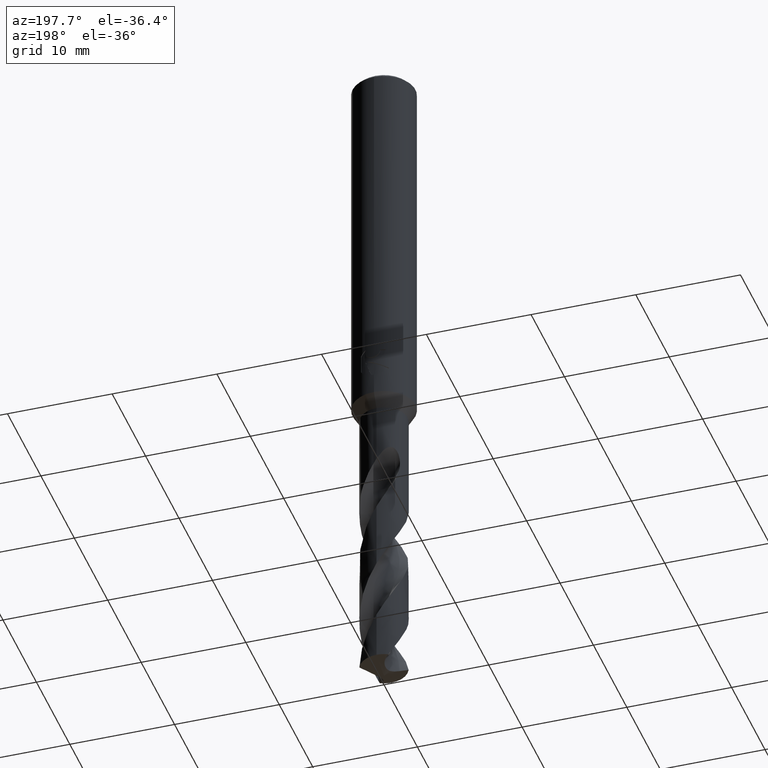
[diagram: clean part render]
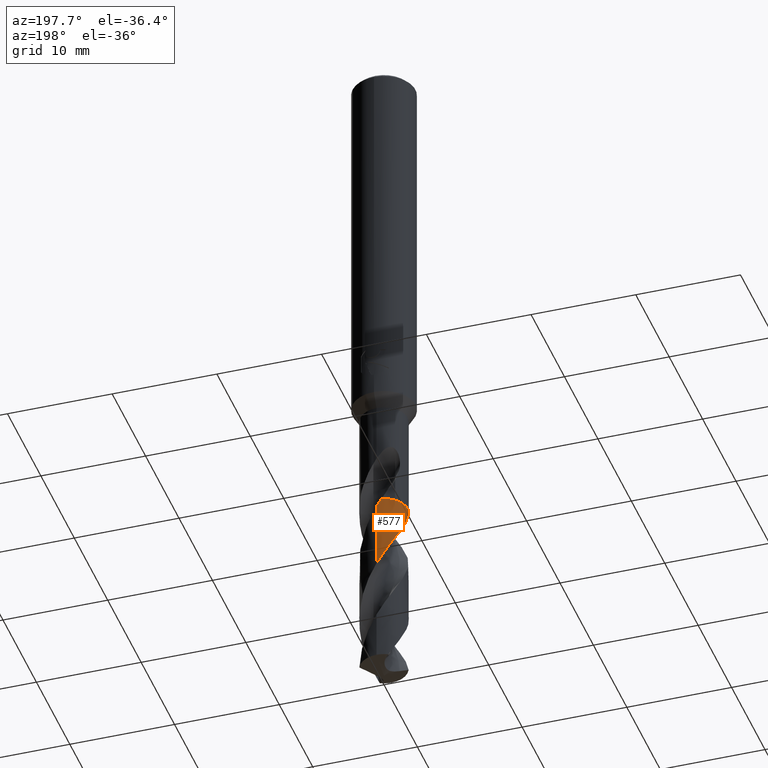
[diagram: same view with one face highlighted and labeled with its STEP entity id]
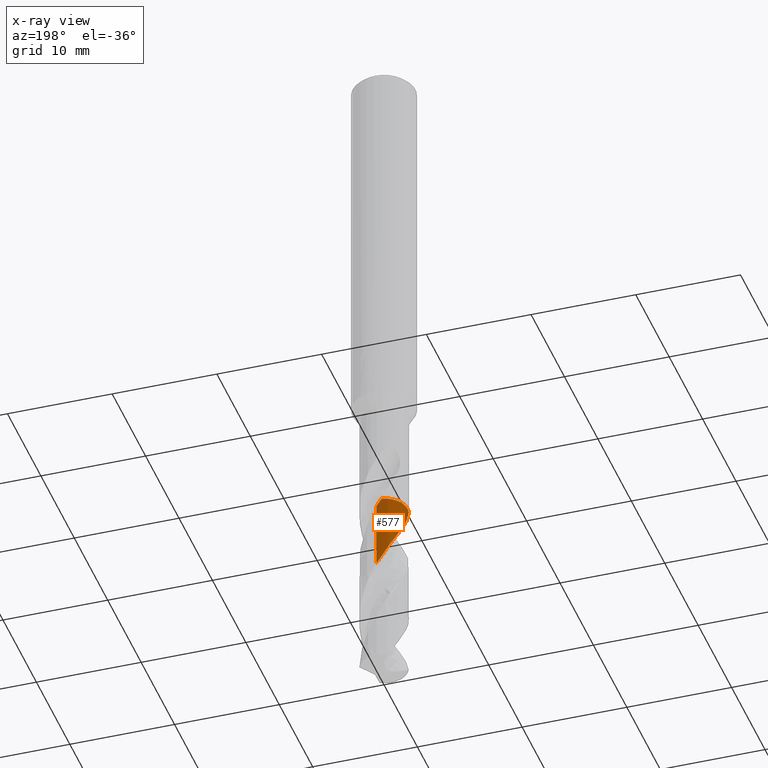
[diagram: x-ray of the same camera — body ghosted, the highlighted face saturated]
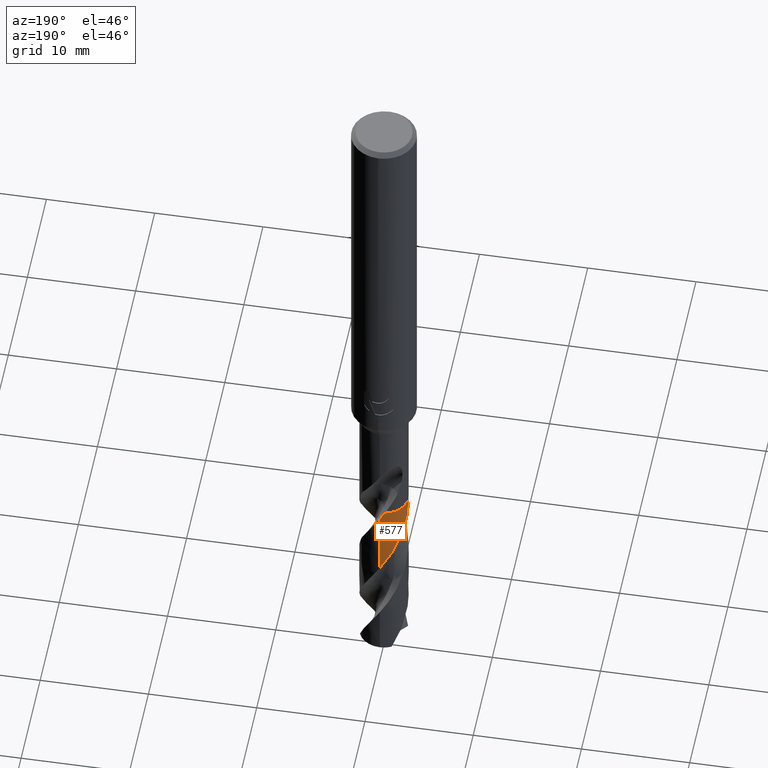
[diagram: same view with one face highlighted and labeled with its STEP entity id]
A machine part, auxiliary view. The second image highlights one B-rep face of the part: STEP entity #577.
The next image is the same camera in x-ray: the body ghosted, the highlighted face saturated — about 0% of this face is hidden behind the body in this view.
A second angle (auxiliary view) of the same face is appended — the face is thin or edge-on in the first view.
In plain terms, the highlighted conical surface has half-angle 0 deg.
Its self-contained STEP definition (entity closure, byte-faithful):
#343=VERTEX_POINT('',#872);
#381=VERTEX_POINT('',#913);
#409=VERTEX_POINT('',#942);
#457=VERTEX_POINT('',#996);
#521=EDGE_CURVE('',#343,#675,#1067,.T.);
#577=ADVANCED_FACE('',(#1128),#1129,.T.);
#655=VERTEX_POINT('',#1217);
#663=EDGE_CURVE('',#409,#457,#1226,.T.);
#675=VERTEX_POINT('',#1239);
#679=EDGE_CURVE('',#655,#343,#1243,.T.);
#731=EDGE_CURVE('',#457,#381,#1298,.T.);
#749=EDGE_CURVE('',#381,#655,#1317,.T.);
#775=EDGE_CURVE('',#675,#409,#1345,.T.);
#872=CARTESIAN_POINT('',(5.07234045210269E-013,2.24990455954114,-48.4016159823466));
#913=CARTESIAN_POINT('',(-0.460633268455283,2.20224135870531,-47.6));
#942=CARTESIAN_POINT('',(-2.15646575794409,-0.641642876413779,-47.605));
#996=CARTESIAN_POINT('',(-2.15563534645972,-0.644427081284996,-47.6));
#1067=LINE('',#3520,#3521);
#1128=FACE_OUTER_BOUND('',#4341,.T.);
#1129=CONICAL_SURFACE('',#4342,2.24995,5.68793692403708E-006);
#1217=CARTESIAN_POINT('',(-0.457794679411212,2.20283321418354,-47.605));
#1226=B_SPLINE_CURVE_WITH_KNOTS('',3,(#5672,#5673,#5674,#5675),.UNSPECIFIED.,.F.,.F.,(4,4),(0.0,0.00881344987940825),.UNSPECIFIED.);
#1239=CARTESIAN_POINT('',(-2.80241454400412E-015,2.24994116683028,-54.8375680020494));
#1243=B_SPLINE_CURVE_WITH_KNOTS('',3,(#5723,#5724,#5725,#5726,#5727,#5728,#5729,#5730,#5731,#5732,#5733,#5734,#5735,#5736,#5737,#5738,#5739,#5740,#5741,#5742,#5743,#5744,#5745,#5746,#5747,#5748,#5749,#5750,#5751,#5752,#5753,#5754,#5755,#5756,#5757,#5758,#5759,#5760,#5761,#5762,#5763,#5764,#5765,#5766,#5767,#5768,#5769,#5770,#5771,#5772,#5773,#5774,#5775,#5776,#5777,#5778,#5779,#5780),.UNSPECIFIED.,.F.,.F.,(4,2,2,2,2,2,2,2,2,2,2,2,2,2,2,2,2,2,2,2,2,2,2,2,2,2,2,2,4),(0.0,1.27150053337594,1.70805649202339,2.14047327103853,3.00542825645866,3.87272317792461,4.74180311895745,5.1705800528356,6.03552111411563,6.90104970557139,7.77113051904369,7.98539752636727,8.89335248758689,9.76351674581578,10.6312251702585,11.0619325647651,11.9250096651198,12.792941736502,13.6615609954269,14.0905863563102,14.8628305131227,15.5433677465607,16.7278894040139,16.9506527413537,17.7900423875433,18.1056432318513,18.6571784685061,19.4855445794361,20.3148525872122),.UNSPECIFIED.);
#1298=CIRCLE('',#6150,2.2499);
#1317=B_SPLINE_CURVE_WITH_KNOTS('',3,(#6665,#6666,#6667,#6668),.UNSPECIFIED.,.F.,.F.,(4,4),(0.0,0.0078008345611814),.UNSPECIFIED.);
#1345=B_SPLINE_CURVE_WITH_KNOTS('',3,(#6825,#6826,#6827,#6828,#6829,#6830,#6831,#6832,#6833,#6834,#6835,#6836,#6837,#6838,#6839,#6840,#6841,#6842,#6843,#6844,#6845,#6846,#6847,#6848,#6849,#6850,#6851,#6852,#6853,#6854,#6855,#6856,#6857,#6858,#6859,#6860,#6861,#6862,#6863,#6864,#6865,#6866,#6867,#6868,#6869,#6870,#6871,#6872,#6873,#6874,#6875,#6876,#6877,#6878,#6879,#6880,#6881,#6882,#6883,#6884,#6885,#6886),.UNSPECIFIED.,.F.,.F.,(4,2,2,2,2,2,2,2,2,2,2,2,2,2,2,2,2,2,2,2,2,2,2,2,2,2,2,2,2,2,4),(0.0,0.853601910074113,1.63127977185655,2.5042317063954,3.37787073533634,3.81238491409315,4.55730642858909,5.3015390837507,6.04699632808603,6.79174299548864,7.53771288193073,8.28297301695919,9.02943797731218,9.77527184693091,10.5222643912142,11.2686922826663,12.0162436364254,12.3468828393483,12.7824946930058,13.6580953578005,14.5297012163715,15.2639980394608,15.9028106342366,16.4648215385572,16.9566097642037,17.0101365174947,17.8559783958826,18.1732811023174,18.7276781868835,19.5612269041402,20.3907023416001),.UNSPECIFIED.);
#3520=CARTESIAN_POINT('',(-2.75759651523072E-016,2.24995,-56.3905334864505));
#3521=VECTOR('',#7176,1.0);
#4341=EDGE_LOOP('',(#7246,#7247,#7248,#7249,#7250,#7251));
#4342=AXIS2_PLACEMENT_3D('',#7252,#7253,#7254);
#5672=CARTESIAN_POINT('',(-2.15689946134128,-0.640183503932587,-47.6076204299149));
#5673=CARTESIAN_POINT('',(-2.156479529226,-0.641598283975321,-47.6050801895759));
#5674=CARTESIAN_POINT('',(-2.15605815773945,-0.643012810438488,-47.6025400463001));
#5675=CARTESIAN_POINT('',(-2.15563534645973,-0.644427081284975,-47.6));
#5723=CARTESIAN_POINT('',(-0.458178597307379,2.2027533892009,-47.6043238294895));
#5724=CARTESIAN_POINT('',(-0.250009916418153,2.24605516174221,-47.9709648009377));
#5725=CARTESIAN_POINT('',(-0.0369635860908691,2.25958664845633,-48.3370591054426));
#5726=CARTESIAN_POINT('',(0.247234897218667,2.23746832907016,-48.8298928231697));
#5727=CARTESIAN_POINT('',(0.319593071851006,2.22828736492765,-48.9557442772608));
#5728=CARTESIAN_POINT('',(0.462559143397811,2.20303185844116,-49.2063804870438));
#5729=CARTESIAN_POINT('',(0.533036794513384,2.18704865999501,-49.3309109963051));
#5730=CARTESIAN_POINT('',(0.74180132224202,2.12901469292628,-49.7051892188958));
#5731=CARTESIAN_POINT('',(0.876948375402458,2.07700405038616,-49.9543458386684));
#5732=CARTESIAN_POINT('',(1.13575119123285,1.94760863453862,-50.4540920915882));
#5733=CARTESIAN_POINT('',(1.25871729885756,1.87048498373527,-50.7036669127822));
#5734=CARTESIAN_POINT('',(1.48827065279931,1.69358582382916,-51.2047394066965));
#5735=CARTESIAN_POINT('',(1.59439182170215,1.59409731171634,-51.4548928358181));
#5736=CARTESIAN_POINT('',(1.73751198086714,1.43120306308627,-51.8292876577872));
#5737=CARTESIAN_POINT('',(1.7821789706283,1.37518147962119,-51.9528749060828));
#5738=CARTESIAN_POINT('',(1.90862581095568,1.20007142441282,-52.3261914012167));
#5739=CARTESIAN_POINT('',(1.98172578846438,1.07509051561446,-52.575345726787));
#5740=CARTESIAN_POINT('',(2.10301276409311,0.812671634332362,-53.0746086026631));
#5741=CARTESIAN_POINT('',(2.1508617469879,0.675920190635318,-53.3237009493908));
#5742=CARTESIAN_POINT('',(2.21983605645879,0.394506338973582,-53.824575522064));
#5743=CARTESIAN_POINT('',(2.24068562036147,0.250354448456519,-54.0749941654678));
#5744=CARTESIAN_POINT('',(2.24915362856115,0.0693782287935821,-54.3878268916551));
#5745=CARTESIAN_POINT('',(2.24997280976077,0.0335918721381829,-54.4496150790931));
#5746=CARTESIAN_POINT('',(2.24979175464187,-0.153844008270088,-54.7734499018099));
#5747=CARTESIAN_POINT('',(2.23431237906448,-0.305118712291984,-55.0351400945692));
#5748=CARTESIAN_POINT('',(2.17441447414499,-0.596077661870474,-55.5482608662318));
#5749=CARTESIAN_POINT('',(2.13138004066129,-0.735247192407512,-55.7985517649881));
#5750=CARTESIAN_POINT('',(2.0192760628373,-1.00288949931756,-56.3001685882993));
#5751=CARTESIAN_POINT('',(1.95050242969732,-1.13086048062198,-56.5500515882677));
#5752=CARTESIAN_POINT('',(1.82982539264608,-1.31118581772633,-56.9247195443178));
#5753=CARTESIAN_POINT('',(1.78696205414374,-1.36902627552516,-57.0488674084327));
#5754=CARTESIAN_POINT('',(1.65013948729667,-1.53626785984734,-57.4223051815627));
#5755=CARTESIAN_POINT('',(1.54832727861548,-1.63883815351973,-57.6710555065522));
#5756=CARTESIAN_POINT('',(1.32579402859064,-1.8236297603105,-58.1706378309037));
#5757=CARTESIAN_POINT('',(1.20555466504329,-1.90524847622122,-58.4203952750047));
#5758=CARTESIAN_POINT('',(0.951042261813926,-2.04423543935094,-58.9217013377397));
#5759=CARTESIAN_POINT('',(0.817255972418415,-2.10131274552915,-59.1718350935241));
#5760=CARTESIAN_POINT('',(0.610481158652394,-2.16675106763277,-59.5463264850954));
#5761=CARTESIAN_POINT('',(0.541149793757867,-2.18509731695023,-59.6700356986941));
#5762=CARTESIAN_POINT('',(0.344963288005461,-2.22710657014383,-60.016819874173));
#5763=CARTESIAN_POINT('',(0.2167174339814,-2.24322553698121,-60.2394758573244));
#5764=CARTESIAN_POINT('',(-0.0258713293743511,-2.25269796748288,-60.6588087159044));
#5765=CARTESIAN_POINT('',(-0.139653103725098,-2.24851261402302,-60.8547470592994));
#5766=CARTESIAN_POINT('',(-0.449226159773566,-2.21353772009614,-61.3931806837145));
#5767=CARTESIAN_POINT('',(-0.642138990297284,-2.16547449616002,-61.7337874498618));
#5768=CARTESIAN_POINT('',(-0.860955954169369,-2.07907762594405,-62.1399740211746));
#5769=CARTESIAN_POINT('',(-0.895236107390843,-2.06454873198023,-62.204246280213));
#5770=CARTESIAN_POINT('',(-1.05686736033778,-1.99126411736779,-62.5109077126245));
#5771=CARTESIAN_POINT('',(-1.17892190404573,-1.92152462314333,-62.7530333452645));
#5772=CARTESIAN_POINT('',(-1.33683884066077,-1.81054959324464,-63.0865146732758));
#5773=CARTESIAN_POINT('',(-1.37891733832472,-1.7787127718014,-63.1775969639303));
#5774=CARTESIAN_POINT('',(-1.49136809668755,-1.6872394459347,-63.4279364798356));
#5775=CARTESIAN_POINT('',(-1.5592372975127,-1.62472570605731,-63.5870170289339));
#5776=CARTESIAN_POINT('',(-1.7189439994852,-1.45837741057166,-63.9854342183447));
#5777=CARTESIAN_POINT('',(-1.80543102334188,-1.3498465605142,-64.2240178203106));
#5778=CARTESIAN_POINT('',(-1.95747636469464,-1.11803806468805,-64.7025089331666));
#5779=CARTESIAN_POINT('',(-2.02255085939877,-0.995445193003,-64.9414621905006));
#5780=CARTESIAN_POINT('',(-2.07589858822261,-0.867839300455668,-65.1810669729011));
#6150=AXIS2_PLACEMENT_3D('',#7432,#7433,#7434);
#6665=CARTESIAN_POINT('',(-0.460633268455289,2.20224135870531,-47.6));
#6666=CARTESIAN_POINT('',(-0.459356417774255,2.2025084450927,-47.6022493918845));
#6667=CARTESIAN_POINT('',(-0.458079337833734,2.20277442037587,-47.6044987842737));
#6668=CARTESIAN_POINT('',(-0.45680203008581,2.2030392842676,-47.6067481794553));
#6825=CARTESIAN_POINT('',(1.04147478267094,-1.99444986827459,-65.1810669729011));
#6826=CARTESIAN_POINT('',(1.16832020358411,-1.9282113246664,-64.9351355299499));
#6827=CARTESIAN_POINT('',(1.28785560016103,-1.85039934807667,-64.6871643708785));
#6828=CARTESIAN_POINT('',(1.49987214259297,-1.68211507606878,-64.2177815799128));
#6829=CARTESIAN_POINT('',(1.59400945858056,-1.59322440691688,-63.9953925956457));
#6830=CARTESIAN_POINT('',(1.77677713883743,-1.38803432038278,-63.5210826776722));
#6831=CARTESIAN_POINT('',(1.86270387796066,-1.27040695480968,-63.2696178728881));
#6832=CARTESIAN_POINT('',(2.01080057760187,-1.01995150099166,-62.7677614520497));
#6833=CARTESIAN_POINT('',(2.07244373249991,-0.887957554661842,-62.5183363466736));
#6834=CARTESIAN_POINT('',(2.1449869279315,-0.683127235230792,-62.1421298821426));
#6835=CARTESIAN_POINT('',(2.1658210761946,-0.613898180807298,-62.0166901475082));
#6836=CARTESIAN_POINT('',(2.21326792932311,-0.423361991065442,-61.6771854328005));
#6837=CARTESIAN_POINT('',(2.23325528812462,-0.300668753276429,-61.4638751648771));
#6838=CARTESIAN_POINT('',(2.2527686605382,-0.0531484900940502,-61.0355073246745));
#6839=CARTESIAN_POINT('',(2.25226199162504,0.0709965228524343,-60.8206720621012));
#6840=CARTESIAN_POINT('',(2.23084525936868,0.317952130452363,-60.3921689443253));
#6841=CARTESIAN_POINT('',(2.2099215002898,0.440507544841298,-60.17883881346));
#6842=CARTESIAN_POINT('',(2.14803121654967,0.680970971760602,-59.7504530131687));
#6843=CARTESIAN_POINT('',(2.10725372361425,0.798230899552873,-59.5356064713638));
#6844=CARTESIAN_POINT('',(2.00683849909988,1.02485584946788,-59.1070983767555));
#6845=CARTESIAN_POINT('',(1.94726792372768,1.13398178553537,-58.8937718792568));
#6846=CARTESIAN_POINT('',(1.81067529695502,1.34133579583146,-58.4653866215238));
#6847=CARTESIAN_POINT('',(1.73404481318433,1.43900790180678,-58.2505380907167));
#6848=CARTESIAN_POINT('',(1.56552376755977,1.62074955994967,-57.8220392312242));
#6849=CARTESIAN_POINT('',(1.4737664664842,1.70462455104676,-57.6087204384582));
#6850=CARTESIAN_POINT('',(1.27726711874477,1.8564170133982,-57.1803366461742));
#6851=CARTESIAN_POINT('',(1.17307598961289,1.92393240834866,-56.9654848770128));
#6852=CARTESIAN_POINT('',(0.954688876329339,2.04113425576373,-56.5369799755353));
#6853=CARTESIAN_POINT('',(0.840676542380622,2.09068479017669,-56.3236642408402));
#6854=CARTESIAN_POINT('',(0.605533464101772,2.17048263912206,-55.8952755042643));
#6855=CARTESIAN_POINT('',(0.485055711551167,2.20052567318152,-55.6804208139052));
#6856=CARTESIAN_POINT('',(0.240440367468241,2.24049457518709,-55.2519019923718));
#6857=CARTESIAN_POINT('',(0.116516217299525,2.25035356003739,-55.0385839585666));
#6858=CARTESIAN_POINT('',(-0.0626225215449489,2.24973971547935,-54.7295314281947));
#6859=CARTESIAN_POINT('',(-0.117463378432067,2.24753981529229,-54.634816772088));
#6860=CARTESIAN_POINT('',(-0.244084311322765,2.23782471225764,-54.4149935126561));
#6861=CARTESIAN_POINT('',(-0.315841878570154,2.22883391886839,-54.2895626040842));
#6862=CARTESIAN_POINT('',(-0.530390803081618,2.19135805990638,-53.9130649851109));
#6863=CARTESIAN_POINT('',(-0.670920874616511,2.15249718409931,-53.6634010604236));
#6864=CARTESIAN_POINT('',(-0.941971985428963,2.04838036675425,-53.1619152652599));
#6865=CARTESIAN_POINT('',(-1.07187063509172,1.98350749535783,-52.9108510197641));
#6866=CARTESIAN_POINT('',(-1.29823703922142,1.84165021496091,-52.4499430018967));
#6867=CARTESIAN_POINT('',(-1.39620096594161,1.7685191388605,-52.2401707509143));
#6868=CARTESIAN_POINT('',(-1.56725658012554,1.61775103550377,-51.8458744585005));
#6869=CARTESIAN_POINT('',(-1.64184547226264,1.5420103102894,-51.6617173814044));
#6870=CARTESIAN_POINT('',(-1.77160693892815,1.39007157147984,-51.3167580932783));
#6871=CARTESIAN_POINT('',(-1.82786530946887,1.31522117083355,-51.155791504873));
#6872=CARTESIAN_POINT('',(-1.92434005117057,1.16865488055938,-50.8531607226733));
#6873=CARTESIAN_POINT('',(-1.96549901894693,1.09799448072092,-50.712162893378));
#6874=CARTESIAN_POINT('',(-2.00670496449749,1.01751638716772,-50.5553324995779));
#6875=CARTESIAN_POINT('',(-2.010701962099,1.00959498112507,-50.5399363660282));
#6876=CARTESIAN_POINT('',(-2.07724812419501,0.875741595186355,-50.2807037730086));
#6877=CARTESIAN_POINT('',(-2.12801656854392,0.744031319921235,-50.0383996724937));
#6878=CARTESIAN_POINT('',(-2.18047992435161,0.557149031010544,-49.7036852882184));
#6879=CARTESIAN_POINT('',(-2.19297923902866,0.505708330173717,-49.6124406344648));
#6880=CARTESIAN_POINT('',(-2.2222912458657,0.363395589803294,-49.361496541143));
#6881=CARTESIAN_POINT('',(-2.23532904976021,0.27190408929936,-49.2014130044997));
#6882=CARTESIAN_POINT('',(-2.25381246313925,0.0413312768685866,-48.8018694906399));
#6883=CARTESIAN_POINT('',(-2.25205819155897,-0.0978165942438229,-48.5636169313703));
#6884=CARTESIAN_POINT('',(-2.22303354775473,-0.373170210114121,-48.0848377885683));
#6885=CARTESIAN_POINT('',(-2.19600174731237,-0.50878541176045,-47.8435698856697));
#6886=CARTESIAN_POINT('',(-2.15644947917958,-0.641697576125194,-47.6049017733755));
#7176=DIRECTION('',(-6.96548369727916E-022,5.68793692400641E-006,-0.999999999983824));
#7246=ORIENTED_EDGE('',*,*,#521,.T.);
#7247=ORIENTED_EDGE('',*,*,#775,.T.);
#7248=ORIENTED_EDGE('',*,*,#663,.T.);
#7249=ORIENTED_EDGE('',*,*,#731,.T.);
#7250=ORIENTED_EDGE('',*,*,#749,.T.);
#7251=ORIENTED_EDGE('',*,*,#679,.T.);
#7252=CARTESIAN_POINT('',(0.0,0.0,-56.3905334864505));
#7253=DIRECTION('',(0.0,-0.0,-1.0));
#7254=DIRECTION('',(0.0,1.0,0.0));
#7432=CARTESIAN_POINT('',(0.0,0.0,-47.6));
#7433=DIRECTION('',(0.0,0.0,-1.0));
#7434=DIRECTION('',(0.0,1.0,0.0));